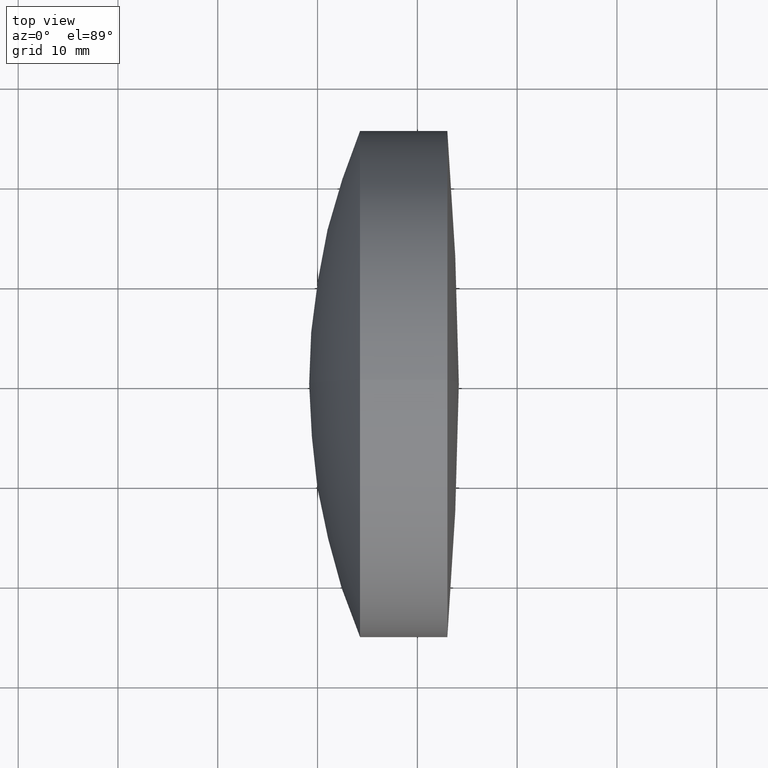
[diagram: clean part render]
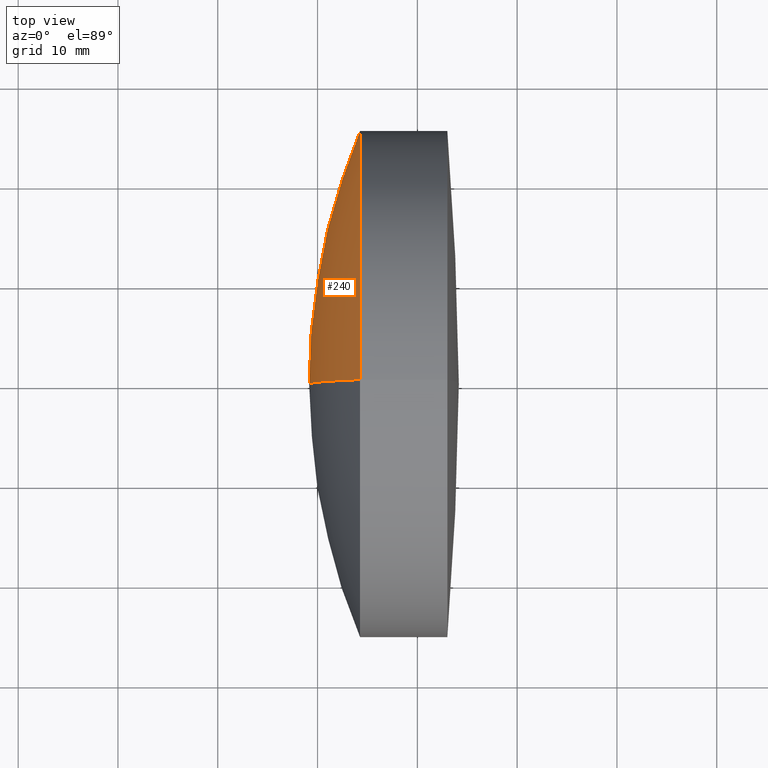
[diagram: same view with one face highlighted and labeled with its STEP entity id]
A machine part, top view. The second image highlights one B-rep face of the part: STEP entity #240.
In plain terms, the highlighted spherical surface has radius 65.8 mm.
Its self-contained STEP definition (entity closure, byte-faithful):
#6 = AXIS2_PLACEMENT_3D ( 'NONE', #162, #53, #134 ) ;
#39 = DIRECTION ( 'NONE',  ( 0.0000000000000000000, 1.000000000000000000, 0.0000000000000000000 ) ) ;
#48 = AXIS2_PLACEMENT_3D ( 'NONE', #192, #39, #329 ) ;
#49 = CIRCLE ( 'NONE', #6, 65.80000000000006800 ) ;
#53 = DIRECTION ( 'NONE',  ( -0.0000000000000000000, 1.000000000000000000, 1.224646799147353200E-016 ) ) ;
#71 = ORIENTED_EDGE ( 'NONE', *, *, #84, .T. ) ;
#76 = ORIENTED_EDGE ( 'NONE', *, *, #231, .F. ) ;
#84 = EDGE_CURVE ( 'NONE', #212, #304, #49, .T. ) ;
#87 = CARTESIAN_POINT ( 'NONE',  ( 534.2585188813353600, 0.0000000000000000000, 0.0000000000000000000 ) ) ;
#107 = CIRCLE ( 'NONE', #332, 65.80000000000006800 ) ;
#112 = DIRECTION ( 'NONE',  ( -1.000000000000000000, -0.0000000000000000000, -0.0000000000000000000 ) ) ;
#134 = DIRECTION ( 'NONE',  ( 0.0000000000000000000, -1.224646799147353200E-016, 1.000000000000000000 ) ) ;
#141 = DIRECTION ( 'NONE',  ( 0.0000000000000000000, 0.0000000000000000000, -1.000000000000000000 ) ) ;
#162 = CARTESIAN_POINT ( 'NONE',  ( 594.9584365089566500, 0.0000000000000000000, -1.033766538299557700E-014 ) ) ;
#163 = CIRCLE ( 'NONE', #263, 25.39999999999998800 ) ;
#171 = CARTESIAN_POINT ( 'NONE',  ( 594.9584365089566500, 0.0000000000000000000, -1.033766538299557700E-014 ) ) ;
#180 = SPHERICAL_SURFACE ( 'NONE', #48, 65.80000000000006800 ) ;
#186 = FACE_OUTER_BOUND ( 'NONE', #249, .T. ) ;
#187 = ORIENTED_EDGE ( 'NONE', *, *, #194, .T. ) ;
#192 = CARTESIAN_POINT ( 'NONE',  ( 594.9584365089566500, 0.0000000000000000000, -1.033766538299557700E-014 ) ) ;
#194 = EDGE_CURVE ( 'NONE', #295, #212, #163, .T. ) ;
#212 = VERTEX_POINT ( 'NONE', #339 ) ;
#231 = EDGE_CURVE ( 'NONE', #295, #304, #107, .T. ) ;
#240 = ADVANCED_FACE ( 'NONE', ( #186 ), #180, .T. ) ;
#249 = EDGE_LOOP ( 'NONE', ( #187, #71, #76 ) ) ;
#260 = DIRECTION ( 'NONE',  ( 0.0000000000000000000, 0.0000000000000000000, 1.000000000000000000 ) ) ;
#263 = AXIS2_PLACEMENT_3D ( 'NONE', #87, #112, #260 ) ;
#264 = CARTESIAN_POINT ( 'NONE',  ( 534.2585188813353600, 0.0000000000000000000, 25.39999999999999100 ) ) ;
#283 = DIRECTION ( 'NONE',  ( 0.0000000000000000000, -1.000000000000000000, 0.0000000000000000000 ) ) ;
#285 = CARTESIAN_POINT ( 'NONE',  ( 529.1584365089565800, 0.0000000000000000000, -6.308577413800780900E-015 ) ) ;
#295 = VERTEX_POINT ( 'NONE', #264 ) ;
#304 = VERTEX_POINT ( 'NONE', #285 ) ;
#329 = DIRECTION ( 'NONE',  ( 0.0000000000000000000, 0.0000000000000000000, 1.000000000000000000 ) ) ;
#332 = AXIS2_PLACEMENT_3D ( 'NONE', #171, #283, #141 ) ;
#339 = CARTESIAN_POINT ( 'NONE',  ( 534.2585188813353600, 3.110602869834276100E-015, -25.40000000000000200 ) ) ;